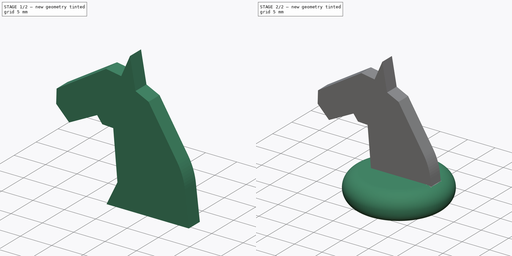
[diagram: build sequence overview — one tinted view per stage of 2, left to right]
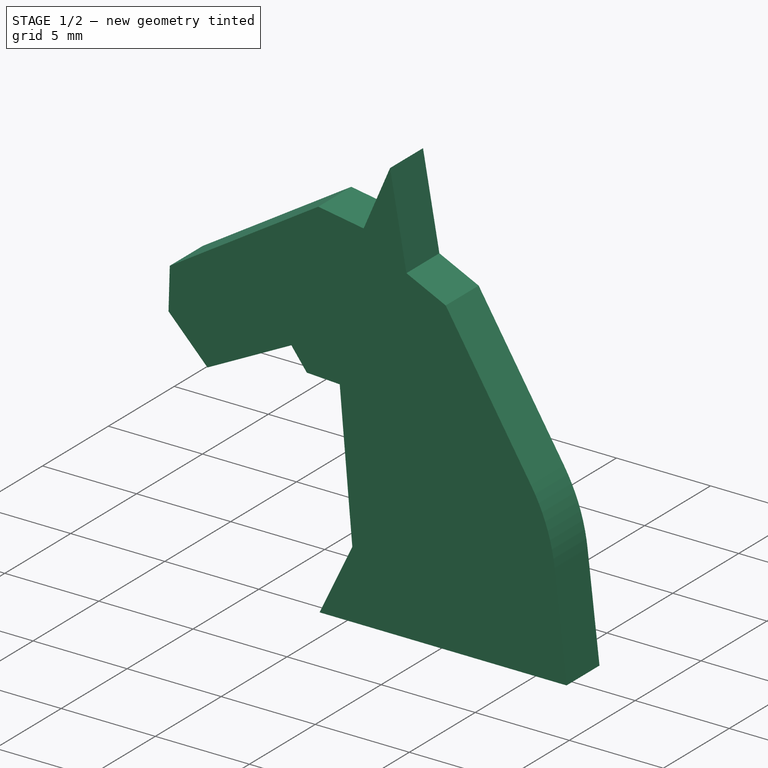
[diagram: stage 1 of 2 — iso view after this stage's code; geometry added in this stage tinted green]
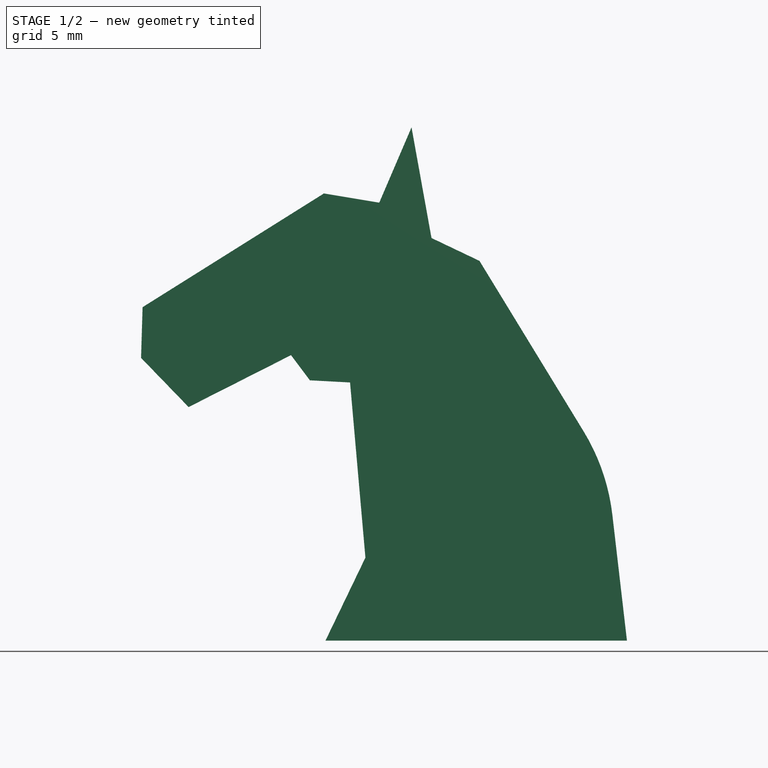
[diagram: stage 1 of 2 — front view after this stage's code; geometry added in this stage tinted green]
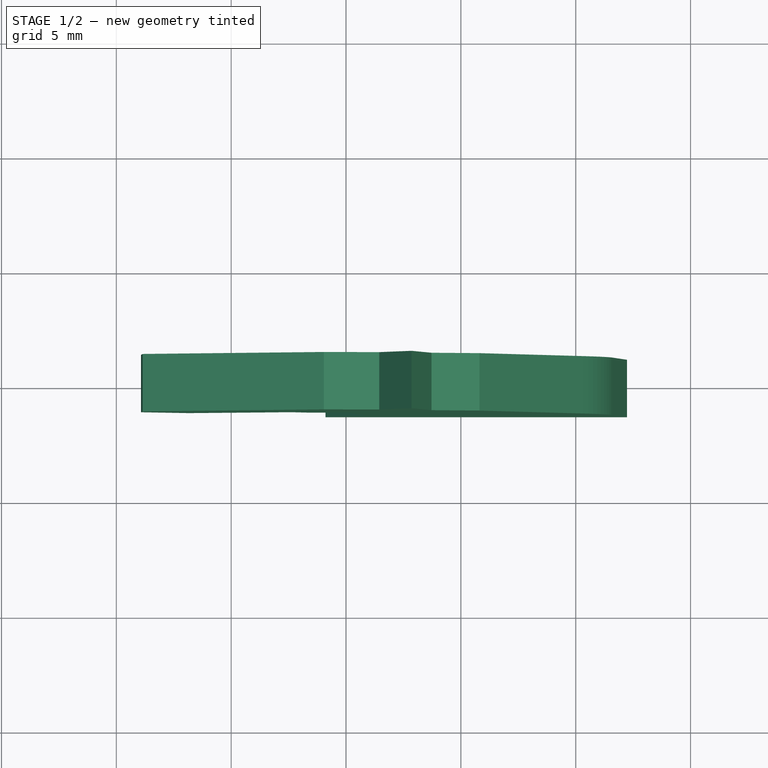
[diagram: stage 1 of 2 — top view after this stage's code; geometry added in this stage tinted green]
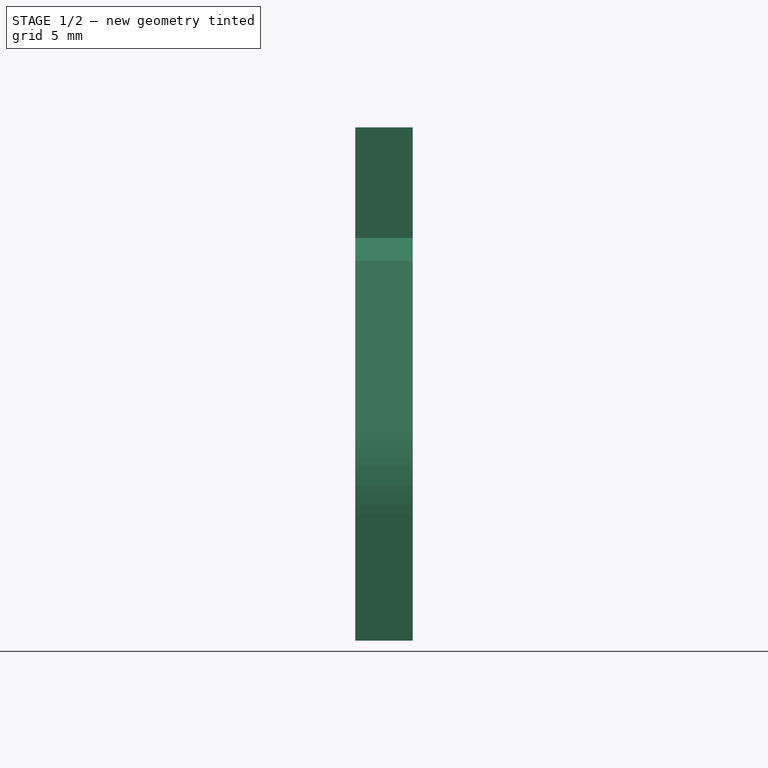
[diagram: stage 1 of 2 — right view after this stage's code; geometry added in this stage tinted green]
FCSTD DOCUMENT  (FreeCAD 0.16R4699 (Git))
Label: knight-v001
License: All rights reserved
LicenseURL: http://en.wikipedia.org/wiki/All_rights_reserved
objects: Sketcher::SketchObject×2, PartDesign::Pad×1, PartDesign::Revolution×1, Part::FeaturePython×1
note: 7 computed .brp shape members not serialized (recipe doc carries the construction recipe); baked Part::Feature solids carry a one-line shape summary decoded from their .brp

FEATURE [Sketcher::SketchObject] Sketch
  Placement = pos=(-7,0,14.5) rot=(-1,0,0;4.71239rad)
  sketch-geometry (16):
    g0: LineSegment StartX=-34.7137 StartY=14.9423 StartZ=0 EndX=-18.9249 EndY=24.8437 EndZ=0
    g1: LineSegment StartX=-18.9249 StartY=24.8437 StartZ=0 EndX=-14.108 EndY=24.0409 EndZ=0
    g2: LineSegment StartX=-14.108 StartY=24.0409 StartZ=0 EndX=-11.2981 EndY=30.5972 EndZ=0
    g3: LineSegment StartX=-11.2981 StartY=30.5972 StartZ=0 EndX=-9.55868 EndY=20.9634 EndZ=0
    g4: LineSegment StartX=-9.55868 StartY=20.9634 StartZ=0 EndX=-5.38225 EndY=18.974 EndZ=0
    g5: LineSegment StartX=-34.7137 StartY=14.9423 StartZ=0 EndX=-34.8475 EndY=10.5268 EndZ=0
    g6: LineSegment StartX=-34.8475 StartY=10.5268 StartZ=0 EndX=-30.7066 EndY=6.24505 EndZ=0
    g7: LineSegment StartX=-30.7066 StartY=6.24505 StartZ=0 EndX=-21.7905 EndY=10.7638 EndZ=0
    g8: LineSegment StartX=-21.7905 StartY=10.7638 StartZ=0 EndX=-20.1473 EndY=8.57287 EndZ=0
    g9: LineSegment StartX=-20.1473 StartY=8.57287 StartZ=0 EndX=-16.6502 EndY=8.3859 EndZ=0
    g10: LineSegment StartX=-16.6502 StartY=8.3859 StartZ=0 EndX=-15.3122 EndY=-6.86764 EndZ=0
    g11: LineSegment StartX=-5.38225 StartY=18.974 StartZ=0 EndX=3.68095 EndY=4.13555 EndZ=0
    g12: LineSegment StartX=6.18941 StartY=-3.14334 StartZ=0 EndX=7.45899 EndY=-14.093 EndZ=0
    g13: LineSegment StartX=7.45899 StartY=-14.093 StartZ=0 EndX=-18.7911 EndY=-14.093 EndZ=0
    g14: LineSegment StartX=-18.7911 StartY=-14.093 StartZ=0 EndX=-15.3122 EndY=-6.86764 EndZ=0
    g15: ArcOfCircle CenterX=-11.6162 CenterY=-5.20784 CenterZ=0 NormalX=0 NormalY=0 NormalZ=1 Radius=17.9249 StartAngle=0.115431 EndAngle=0.548318
  constraints (47):
    c: Coincident(g0,g1)
    c: Coincident(g1,g2)
    c: Coincident(g2,g3)
    c: Coincident(g3,g4)
    c: Coincident(g0,g5)
    c: Coincident(g5,g6)
    c: Coincident(g6,g7)
    c: Coincident(g7,g8)
    c: Coincident(g8,g9)
    c: Coincident(g9,g10)
    c: Coincident(g12,g13)
    c: Horizontal(g13)
    c: Coincident(g13,g14)
    c: Coincident(g14,g10)
    c: Tangent(g11,g15) = 1.5708
    c: Tangent(g12,g15) = 1.5708
    c: DistanceX(g13) = -18.7911
    c: DistanceY(g13) = -14.093
    c: DistanceX(g11) = -5.38225
    c: DistanceY(g11) = 18.974
    c: DistanceX(g2) = -11.2981
    c: DistanceY(g2) = 30.5972
    c: DistanceX(g1) = -14.108
    c: DistanceY(g1) = 24.0409
    c: DistanceX(g0) = -18.9249
    c: DistanceY(g0) = 24.8437
    c: DistanceX(g0) = -34.7137
    c: DistanceY(g0) = 14.9423
    c: DistanceX(g5) = -34.8475
    c: DistanceY(g5) = 10.5268
    c: DistanceX(g6) = -30.7066
    c: DistanceY(g6) = 6.24505
    c: DistanceX(g11) = 3.68095
    c: DistanceY(g11) = 4.13555
    c: Coincident(g4,g11)
    c: DistanceX(g3) = -9.55868
    c: DistanceY(g3) = 20.9634
    c: DistanceX(g7) = -21.7905
    c: DistanceY(g7) = 10.7638
    c: DistanceX(g8) = -20.1473
    c: DistanceY(g8) = 8.57287
    c: DistanceX(g9) = -16.6502
    c: DistanceY(g9) = 8.3859
    c: DistanceX(g10) = -15.3122
    c: DistanceY(g10) = -6.86764
    c: DistanceX(g12) = 7.45899
    c: DistanceX(g15) = -11.6162
FEATURE [PartDesign::Pad] Pad
  Length = 5
  Length2 = 100
  Midplane = true
  Placement = pos=(-7,0,14.5) rot=(-1,0,0;4.71239rad)
  Sketch = -> Sketch
  Type = 0
FEATURE [Part::FeaturePython] Scale  # Draft clone (typed FeaturePython)
  Objects = -> [Pad]
  Placement = pos=(0,0,15) rot=(1,0,0;1.5708rad)
  Scale = (0.5,0.5,0.5)
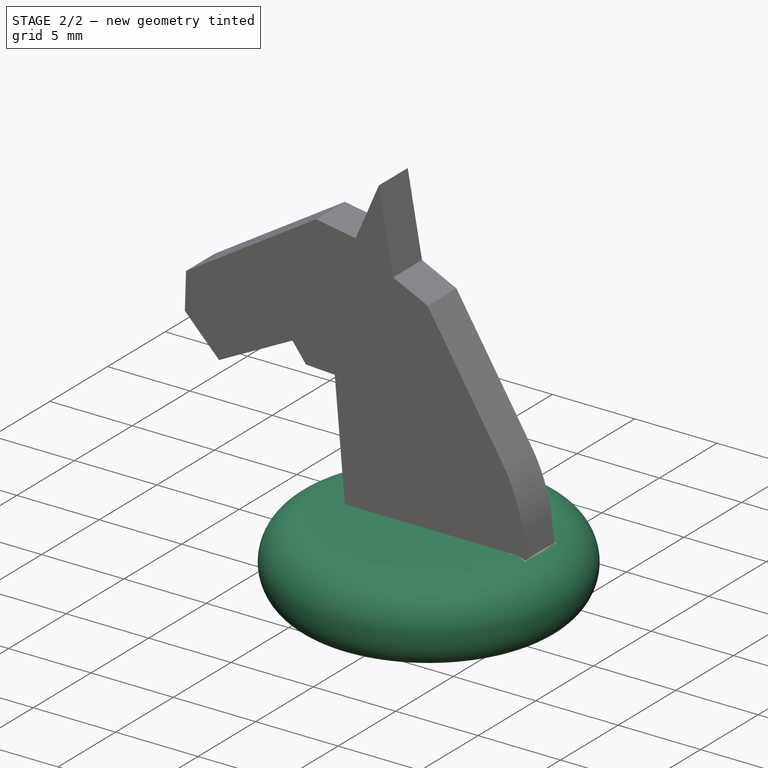
[diagram: stage 2 of 2 — iso view after this stage's code; geometry added in this stage tinted green]
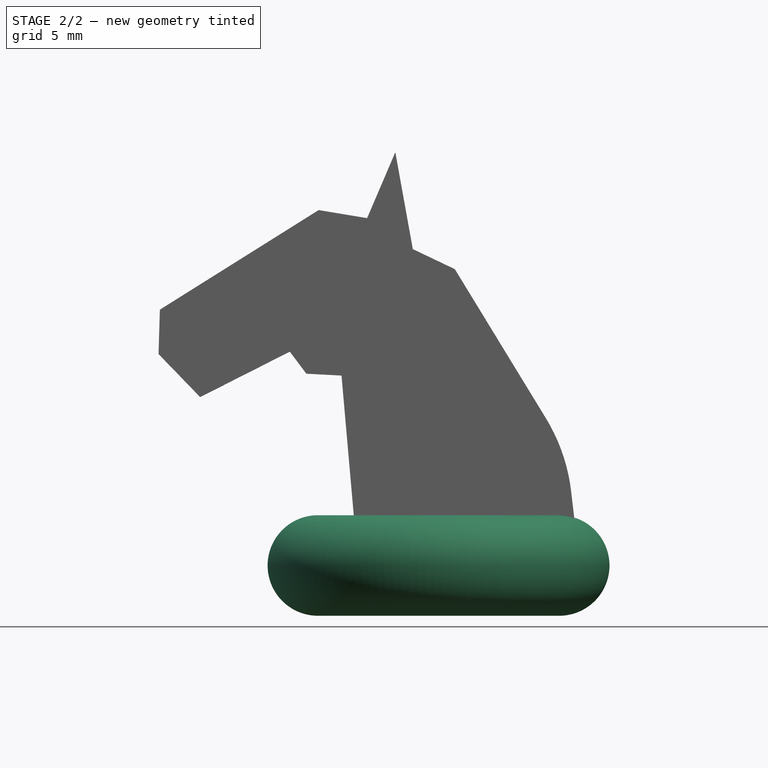
[diagram: stage 2 of 2 — front view after this stage's code; geometry added in this stage tinted green]
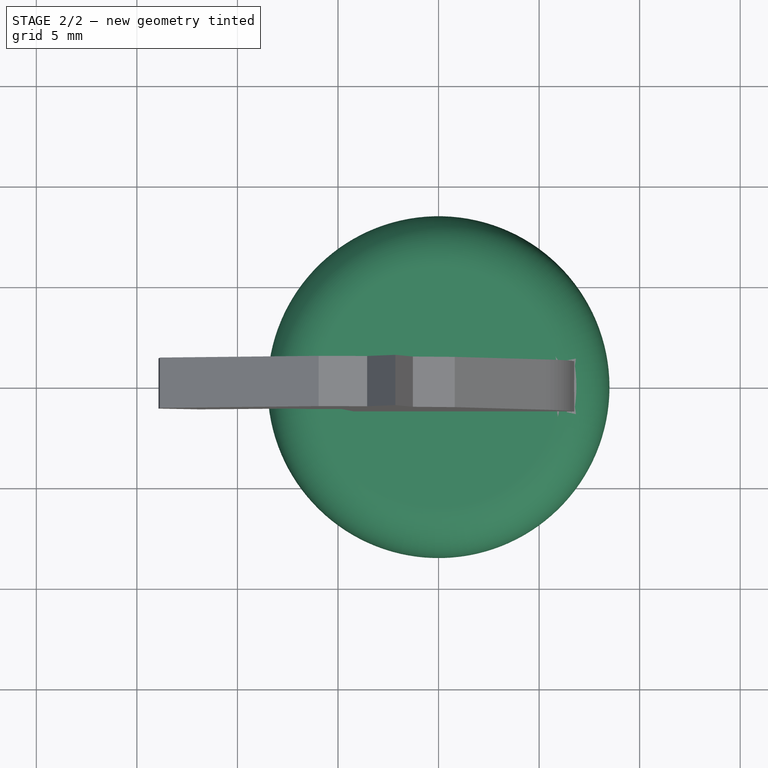
[diagram: stage 2 of 2 — top view after this stage's code; geometry added in this stage tinted green]
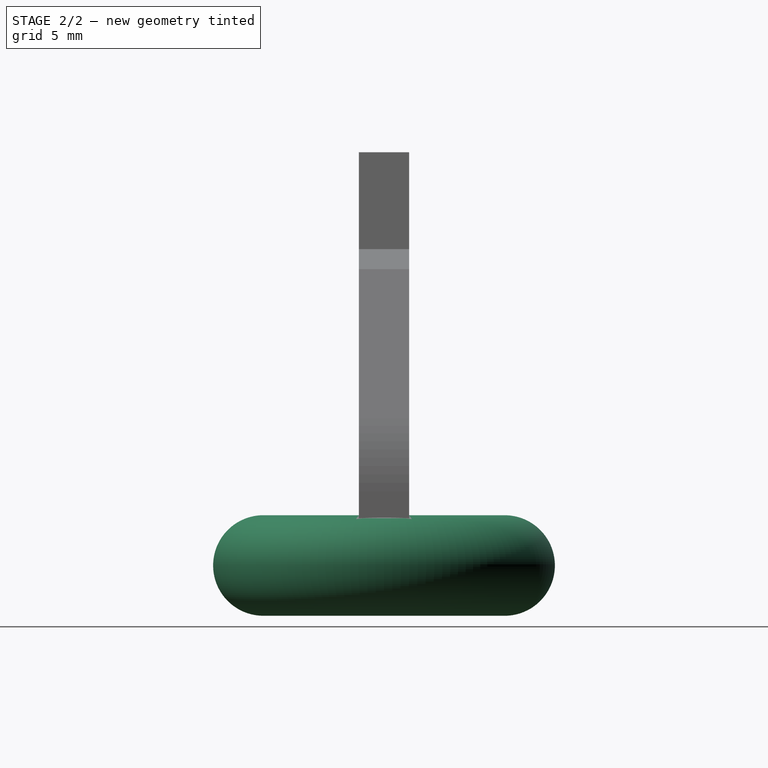
[diagram: stage 2 of 2 — right view after this stage's code; geometry added in this stage tinted green]
FEATURE [Sketcher::SketchObject] Sketch001
  Placement = pos=(0,0,0) rot=(1,0,0;1.5708rad)
  sketch-geometry (7):
    g0: LineSegment StartX=0 StartY=0 StartZ=0 EndX=6 EndY=0 EndZ=0
    g1: LineSegment [constr] StartX=6 StartY=0 StartZ=0 EndX=6 EndY=5 EndZ=0
    g2: LineSegment StartX=6 StartY=5 StartZ=0 EndX=0 EndY=5 EndZ=0
    g3: LineSegment StartX=0 StartY=5 StartZ=0 EndX=0 EndY=0 EndZ=0
    g4: LineSegment StartX=0 StartY=5 StartZ=0 EndX=3.5 EndY=5 EndZ=0
    g5: ArcOfCircle CenterX=6 CenterY=2.5 CenterZ=0 NormalX=0 NormalY=0 NormalZ=1 Radius=2.5 StartAngle=4.71239 EndAngle=7.85398
    g6: LineSegment StartX=0 StartY=5 StartZ=0 EndX=0 EndY=0 EndZ=0
  constraints (19):
    c: Coincident(g0,g1)
    c: Coincident(g1,g2)
    c: Coincident(g2,g3)
    c: Coincident(g3,g0)
    c: Horizontal(g0)
    c: Horizontal(g2)
    c: Vertical(g1)
    c: Vertical(g3)
    c: Coincident(g0,g-1)
    c: Horizontal(g4)
    c: Coincident(g4,g2)
    c: DistanceX(g0) = 6
    c: DistanceY(g1) = 5
    c: Coincident(g5,g1)
    c: Coincident(g5,g0)
    c: PointOnObject(g5,g1)
    c: DistanceX(g4,g2) = -3.5
    c: Coincident(g6,g2)
    c: Coincident(g6,g-1)
FEATURE [PartDesign::Revolution] Revolution
  Angle = 360
  Axis = (0,0,1)
  Base = (0,0,0)
  Placement = pos=(0,0,0) rot=(1,0,0;1.5708rad)
  ReferenceAxis = -> Sketch001 [V_Axis]
  Reversed = true
  Sketch = -> Sketch001
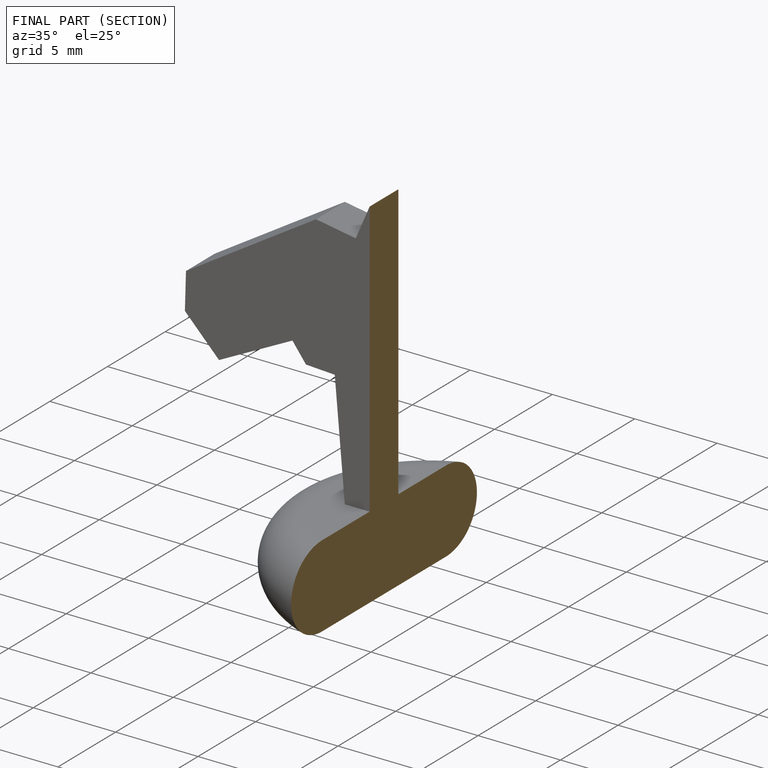
[diagram: finished part — half-section view (interior)]
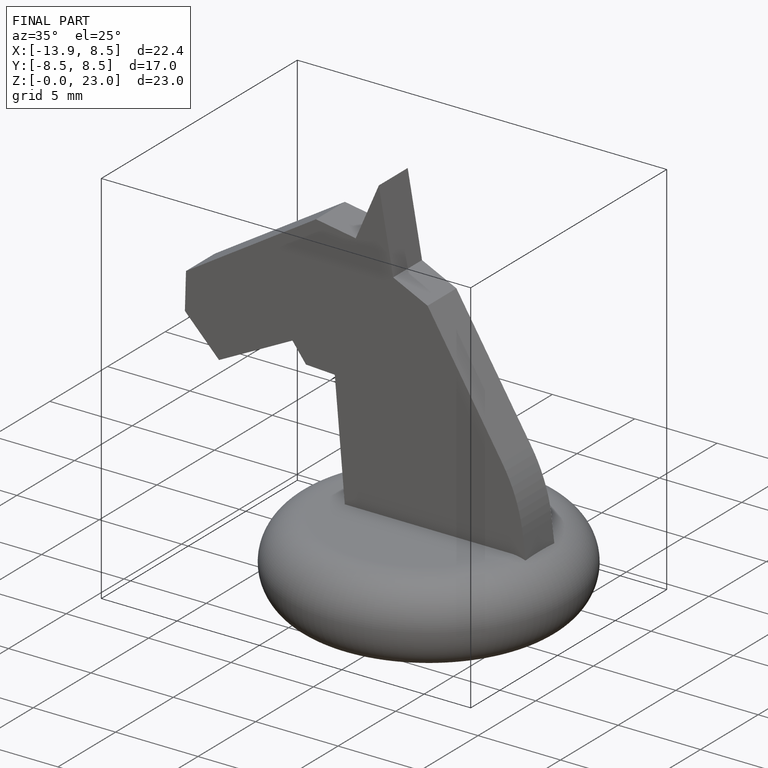
[diagram: finished part — iso view with bounding-box wireframe]
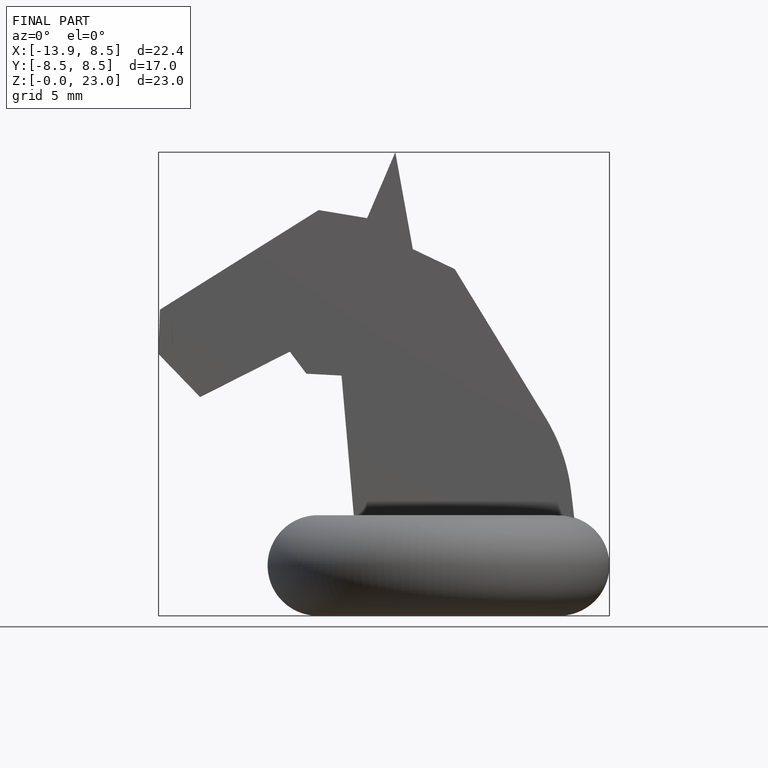
[diagram: finished part — front view with bounding-box wireframe]
